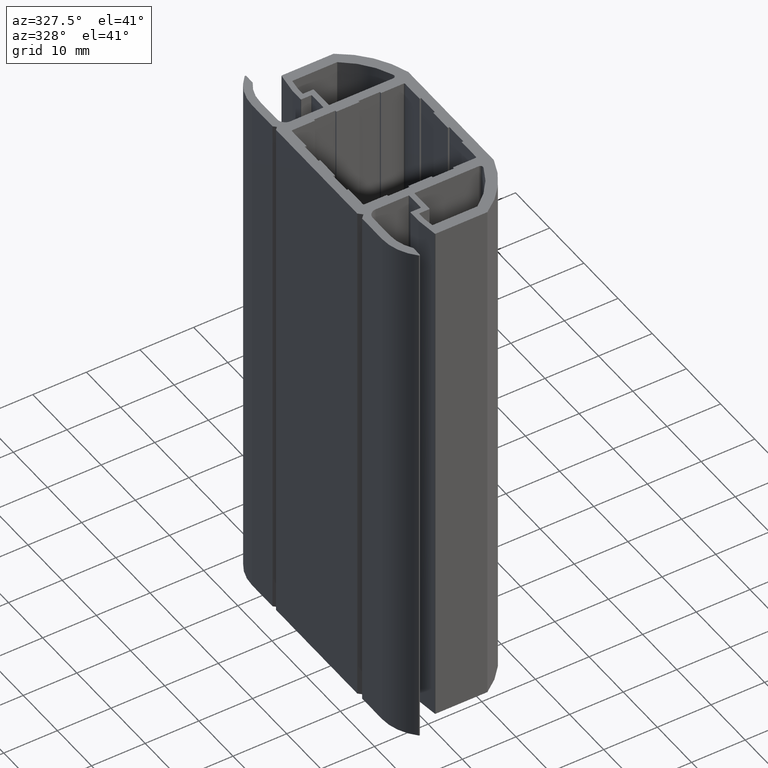
[diagram: clean part render]
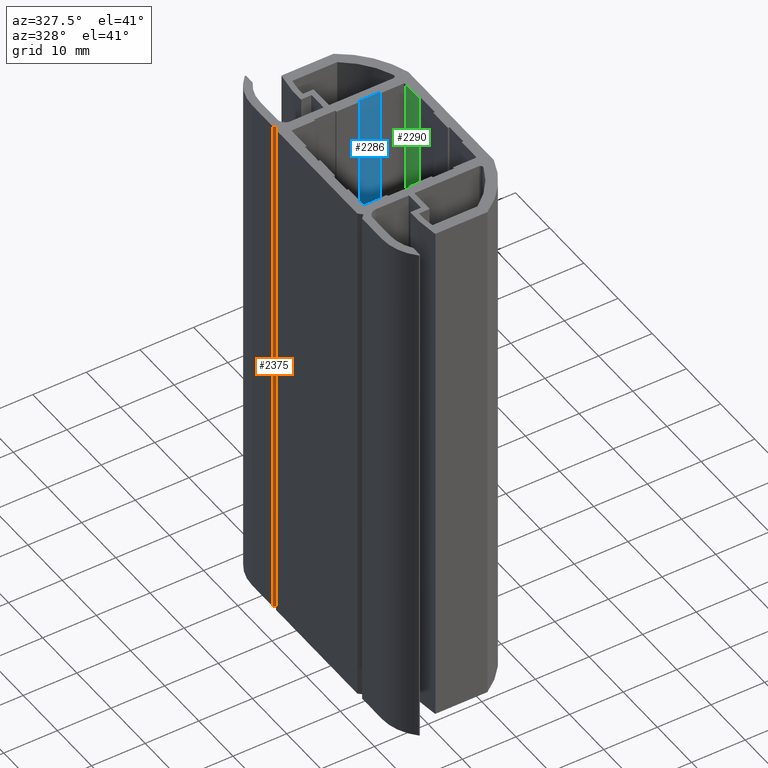
[diagram: same view with three faces highlighted in distinct colors, each labeled with its STEP entity id]
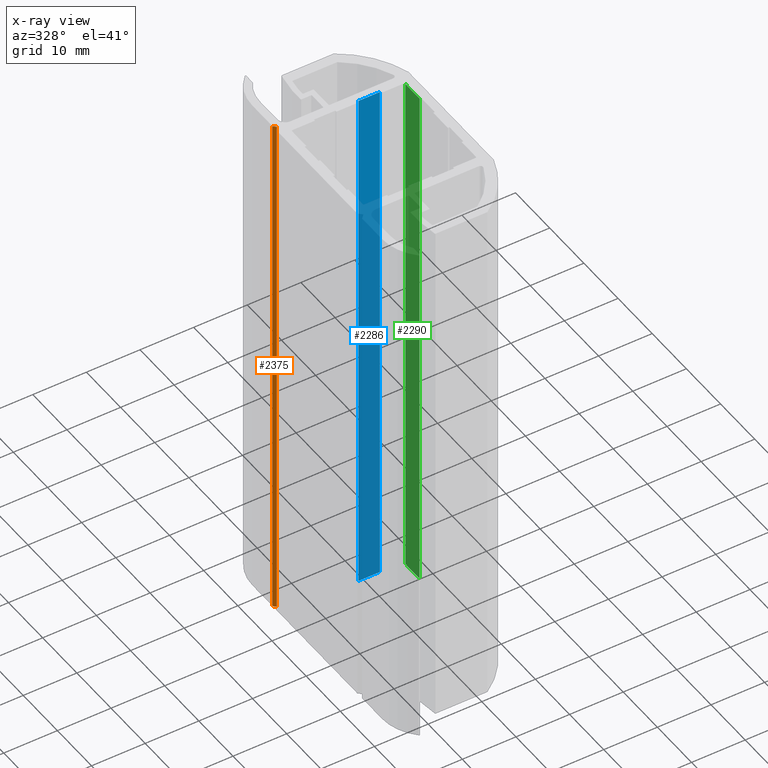
[diagram: x-ray of the same camera — body ghosted, the three highlighted faces saturated]
A machine part, auxiliary view with three faces highlighted in distinct colors.
The next image is the same camera in x-ray (body ghosted, the three faces saturated) — at least one of them is partly hidden behind the body in this view.
Their STEP definitions:

[orange] entity #2375 — the highlighted planar face has unit normal (-0.7071, -0.7071, 0).
#253=FACE_OUTER_BOUND('',#371,.T.);
#371=EDGE_LOOP('',(#1909,#1910,#1911,#1912));
#625=LINE('',#3927,#889);
#626=LINE('',#3929,#890);
#627=LINE('',#3931,#891);
#628=LINE('',#3932,#892);
#889=VECTOR('',#3224,10.);
#890=VECTOR('',#3225,10.);
#891=VECTOR('',#3226,10.);
#892=VECTOR('',#3227,10.);
#1129=VERTEX_POINT('',#3925);
#1130=VERTEX_POINT('',#3926);
#1131=VERTEX_POINT('',#3928);
#1132=VERTEX_POINT('',#3930);
#1461=EDGE_CURVE('',#1129,#1130,#625,.T.);
#1462=EDGE_CURVE('',#1131,#1129,#626,.T.);
#1463=EDGE_CURVE('',#1132,#1131,#627,.T.);
#1464=EDGE_CURVE('',#1132,#1130,#628,.T.);
#1909=ORIENTED_EDGE('',*,*,#1461,.F.);
#1910=ORIENTED_EDGE('',*,*,#1462,.F.);
#1911=ORIENTED_EDGE('',*,*,#1463,.F.);
#1912=ORIENTED_EDGE('',*,*,#1464,.T.);
#2261=PLANE('',#2605);
#2375=ADVANCED_FACE('',(#253),#2261,.T.);
#2605=AXIS2_PLACEMENT_3D('',#3924,#3222,#3223);
#3222=DIRECTION('center_axis',(-0.707106781186502,-0.707106781186593,0.));
#3223=DIRECTION('ref_axis',(0.707106781186593,-0.707106781186502,0.));
#3224=DIRECTION('',(0.707106781186593,-0.707106781186502,0.));
#3225=DIRECTION('',(0.,0.,1.));
#3226=DIRECTION('',(-0.707106781186593,0.707106781186502,0.));
#3227=DIRECTION('',(0.,0.,1.));
#3924=CARTESIAN_POINT('Origin',(-12.4999999999999,13.,0.));
#3925=CARTESIAN_POINT('',(-12.5,13.,100.));
#3926=CARTESIAN_POINT('',(-11.9999999999999,12.5,100.));
#3927=CARTESIAN_POINT('',(-6.12499999999957,6.62500000000039,100.));
#3928=CARTESIAN_POINT('',(-12.4999999999999,13.,0.));
#3929=CARTESIAN_POINT('',(-12.5,13.,0.));
#3930=CARTESIAN_POINT('',(-11.9999999999999,12.5,0.));
#3931=CARTESIAN_POINT('',(-6.12499999999957,6.62500000000039,0.));
#3932=CARTESIAN_POINT('',(-11.9999999999999,12.5,0.));

[blue] entity #2286 — the highlighted planar face has unit normal (0, 1, 0).
#164=FACE_OUTER_BOUND('',#282,.T.);
#282=EDGE_LOOP('',(#1553,#1554,#1555,#1556));
#418=LINE('',#3387,#682);
#419=LINE('',#3389,#683);
#420=LINE('',#3391,#684);
#421=LINE('',#3392,#685);
#682=VECTOR('',#2715,10.);
#683=VECTOR('',#2716,10.);
#684=VECTOR('',#2717,10.);
#685=VECTOR('',#2718,10.);
#947=VERTEX_POINT('',#3385);
#948=VERTEX_POINT('',#3386);
#949=VERTEX_POINT('',#3388);
#950=VERTEX_POINT('',#3390);
#1192=EDGE_CURVE('',#947,#948,#418,.T.);
#1193=EDGE_CURVE('',#949,#947,#419,.T.);
#1194=EDGE_CURVE('',#950,#949,#420,.T.);
#1195=EDGE_CURVE('',#950,#948,#421,.T.);
#1553=ORIENTED_EDGE('',*,*,#1192,.F.);
#1554=ORIENTED_EDGE('',*,*,#1193,.F.);
#1555=ORIENTED_EDGE('',*,*,#1194,.F.);
#1556=ORIENTED_EDGE('',*,*,#1195,.T.);
#2203=PLANE('',#2454);
#2286=ADVANCED_FACE('',(#164),#2203,.F.);
#2454=AXIS2_PLACEMENT_3D('',#3384,#2713,#2714);
#2713=DIRECTION('center_axis',(0.,1.,0.));
#2714=DIRECTION('ref_axis',(-1.,0.,0.));
#2715=DIRECTION('',(1.,0.,0.));
#2716=DIRECTION('',(0.,0.,1.));
#2717=DIRECTION('',(-1.,0.,0.));
#2718=DIRECTION('',(0.,0.,1.));
#3384=CARTESIAN_POINT('Origin',(6.14999999999992,10.8500000000001,0.));
#3385=CARTESIAN_POINT('',(2.14999999999992,10.8500000000001,100.));
#3386=CARTESIAN_POINT('',(6.14999999999992,10.8500000000001,100.));
#3387=CARTESIAN_POINT('',(3.07499999999996,10.8500000000001,100.));
#3388=CARTESIAN_POINT('',(2.14999999999992,10.8500000000001,0.));
#3389=CARTESIAN_POINT('',(2.14999999999992,10.8500000000001,0.));
#3390=CARTESIAN_POINT('',(6.14999999999992,10.8500000000001,0.));
#3391=CARTESIAN_POINT('',(3.07499999999996,10.8500000000001,0.));
#3392=CARTESIAN_POINT('',(6.14999999999992,10.8500000000001,0.));

[green] entity #2290 — the highlighted planar face has unit normal (1, 0, 0).
#168=FACE_OUTER_BOUND('',#286,.T.);
#286=EDGE_LOOP('',(#1569,#1570,#1571,#1572));
#428=LINE('',#3410,#692);
#429=LINE('',#3413,#693);
#430=LINE('',#3415,#694);
#431=LINE('',#3416,#695);
#692=VECTOR('',#2735,10.);
#693=VECTOR('',#2738,10.);
#694=VECTOR('',#2739,10.);
#695=VECTOR('',#2740,10.);
#955=VERTEX_POINT('',#3406);
#956=VERTEX_POINT('',#3408);
#957=VERTEX_POINT('',#3412);
#958=VERTEX_POINT('',#3414);
#1204=EDGE_CURVE('',#956,#955,#428,.T.);
#1205=EDGE_CURVE('',#955,#957,#429,.T.);
#1206=EDGE_CURVE('',#958,#956,#430,.T.);
#1207=EDGE_CURVE('',#958,#957,#431,.T.);
#1569=ORIENTED_EDGE('',*,*,#1205,.F.);
#1570=ORIENTED_EDGE('',*,*,#1204,.F.);
#1571=ORIENTED_EDGE('',*,*,#1206,.F.);
#1572=ORIENTED_EDGE('',*,*,#1207,.T.);
#2206=PLANE('',#2460);
#2290=ADVANCED_FACE('',(#168),#2206,.F.);
#2460=AXIS2_PLACEMENT_3D('',#3411,#2736,#2737);
#2735=DIRECTION('',(0.,0.,1.));
#2736=DIRECTION('center_axis',(1.,9.51619735393044E-15,0.));
#2737=DIRECTION('ref_axis',(-9.51619735393044E-15,1.,0.));
#2738=DIRECTION('',(9.51619735393044E-15,-1.,0.));
#2739=DIRECTION('',(-9.51619735393044E-15,1.,0.));
#2740=DIRECTION('',(0.,0.,1.));
#3406=CARTESIAN_POINT('',(10.5500000000001,10.35,100.));
#3408=CARTESIAN_POINT('',(10.5500000000001,10.35,0.));
#3410=CARTESIAN_POINT('',(10.5500000000001,10.35,0.));
#3411=CARTESIAN_POINT('Origin',(10.5500000000001,6.15000000000022,0.));
#3412=CARTESIAN_POINT('',(10.5500000000001,6.15000000000022,100.));
#3413=CARTESIAN_POINT('',(10.5500000000001,3.07500000000016,100.));
#3414=CARTESIAN_POINT('',(10.5500000000001,6.15000000000022,0.));
#3415=CARTESIAN_POINT('',(10.5500000000001,3.07500000000016,0.));
#3416=CARTESIAN_POINT('',(10.5500000000001,6.15000000000022,0.));